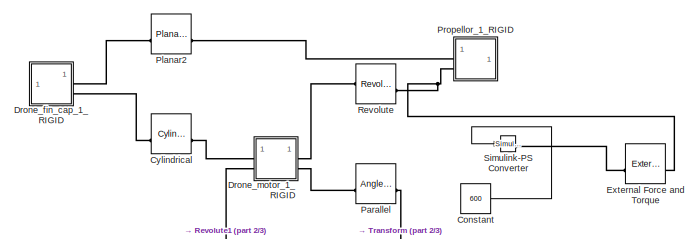
[diagram: root canvas - part 1/3, top center region]
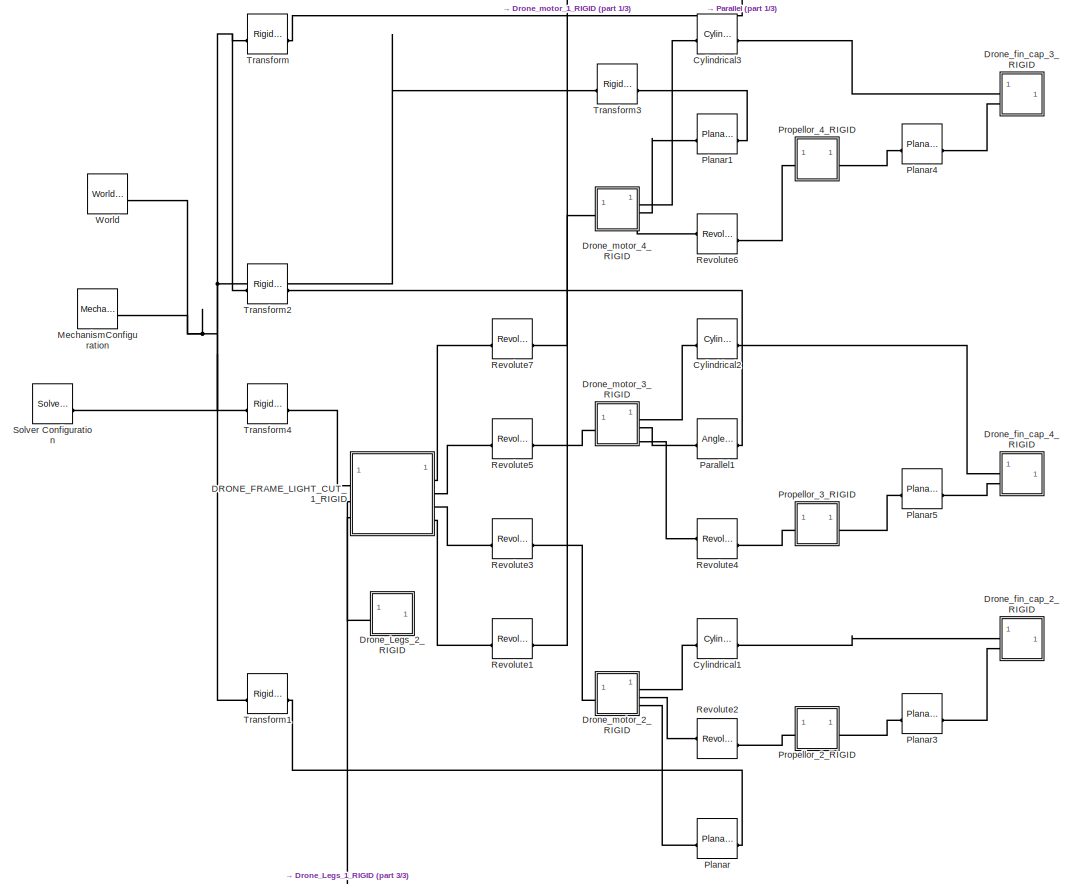
[diagram: root canvas - part 2/3, full width, middle band]
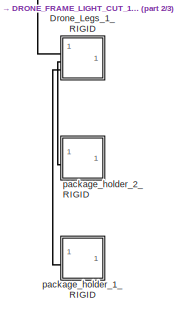
[diagram: root canvas - part 3/3, bottom center region]
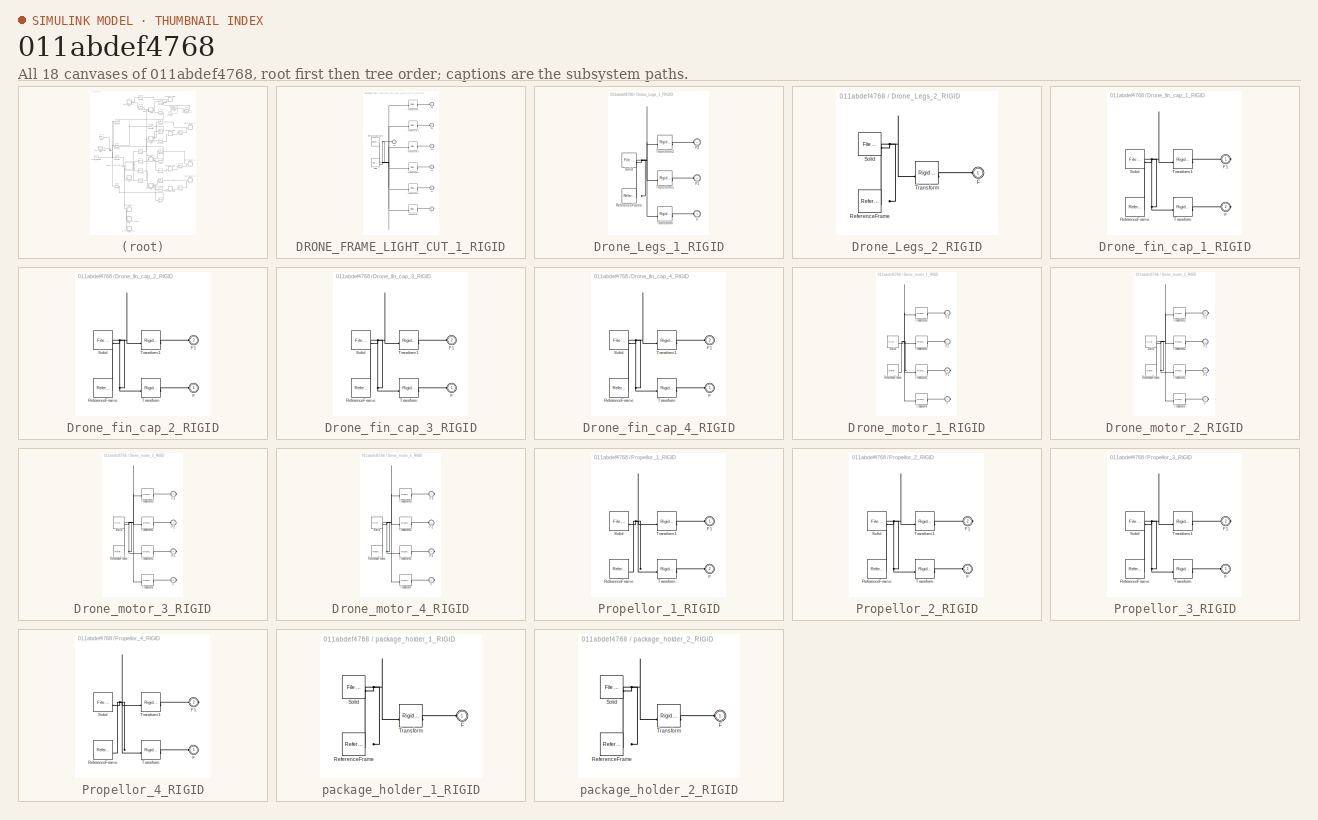
[diagram: thumbnail index - all 18 canvases of the model, root first then tree order]
MODEL slx_011abdef4768
KIND model
CONFIG AbsTol = auto
CONFIG EnableMultiTasking = off
CONFIG FixedStep = auto
CONFIG MaxStep = auto
CONFIG MinStep = auto
CONFIG RelTol = 1e-3
CONFIG SampleTimeConstraint = Unconstrained
CONFIG SolverName = VariableStepAuto
CONFIG StartTime = 0.0
CONFIG StopTime = 10.0
WORKSPACE source: external: MATLAB File  (data not in archive)
BLOCK [Constant] Constant
  Value = 600
BLOCK [Reference] Cylindrical  REF=sm_lib/Joints/Cylindrical
Joint
  SourceBlock = sm_lib/Joints/Cylindrical\nJoint
  SourceType = Cylindrical\nJoint
BLOCK [Reference] Cylindrical1  REF=sm_lib/Joints/Cylindrical
Joint
  SourceBlock = sm_lib/Joints/Cylindrical\nJoint
  SourceType = Cylindrical\nJoint
BLOCK [Reference] Cylindrical2  REF=sm_lib/Joints/Cylindrical
Joint
  SourceBlock = sm_lib/Joints/Cylindrical\nJoint
  SourceType = Cylindrical\nJoint
BLOCK [Reference] Cylindrical3  REF=sm_lib/Joints/Cylindrical
Joint
  SourceBlock = sm_lib/Joints/Cylindrical\nJoint
  SourceType = Cylindrical\nJoint
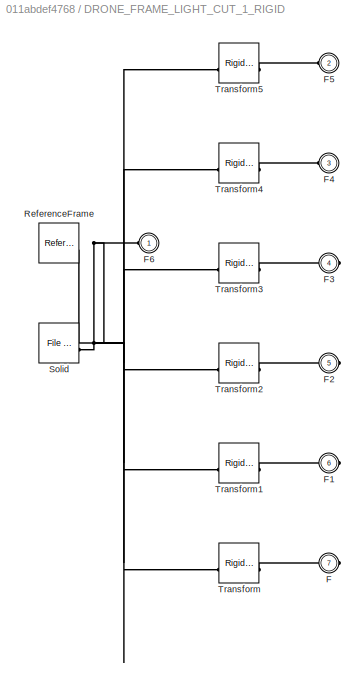
BLOCK [SubSystem] DRONE_FRAME_LIGHT_CUT_1_RIGID
BLOCK [PMIOPort] DRONE_FRAME_LIGHT_CUT_1_RIGID/F
  Port = 7
  Side = Right
BLOCK [PMIOPort] DRONE_FRAME_LIGHT_CUT_1_RIGID/F1
  Port = 6
  Side = Right
BLOCK [PMIOPort] DRONE_FRAME_LIGHT_CUT_1_RIGID/F2
  Port = 5
  Side = Right
BLOCK [PMIOPort] DRONE_FRAME_LIGHT_CUT_1_RIGID/F3
  Port = 4
  Side = Right
BLOCK [PMIOPort] DRONE_FRAME_LIGHT_CUT_1_RIGID/F4
  Port = 3
  Side = Left
BLOCK [PMIOPort] DRONE_FRAME_LIGHT_CUT_1_RIGID/F5
  Port = 2
  Side = Left
BLOCK [PMIOPort] DRONE_FRAME_LIGHT_CUT_1_RIGID/F6
  Side = Left
BLOCK [Reference] DRONE_FRAME_LIGHT_CUT_1_RIGID/ReferenceFrame  REF=sm_lib/Frames and
Transforms/Reference
Frame
  SourceBlock = sm_lib/Frames and\nTransforms/Reference\nFrame
  SourceType = Reference\nFrame
BLOCK [Reference] DRONE_FRAME_LIGHT_CUT_1_RIGID/Solid  REF=sm_lib/Body Elements/File Solid
  SourceBlock = sm_lib/Body Elements/File Solid
  SourceType = File Solid
BLOCK [Reference] DRONE_FRAME_LIGHT_CUT_1_RIGID/Transform  REF=sm_lib/Frames and
Transforms/Rigid
Transform
  SourceBlock = sm_lib/Frames and\nTransforms/Rigid\nTransform
  SourceType = Rigid\nTransform
BLOCK [Reference] DRONE_FRAME_LIGHT_CUT_1_RIGID/Transform1  REF=sm_lib/Frames and
Transforms/Rigid
Transform
  SourceBlock = sm_lib/Frames and\nTransforms/Rigid\nTransform
  SourceType = Rigid\nTransform
BLOCK [Reference] DRONE_FRAME_LIGHT_CUT_1_RIGID/Transform2  REF=sm_lib/Frames and
Transforms/Rigid
Transform
  SourceBlock = sm_lib/Frames and\nTransforms/Rigid\nTransform
  SourceType = Rigid\nTransform
BLOCK [Reference] DRONE_FRAME_LIGHT_CUT_1_RIGID/Transform3  REF=sm_lib/Frames and
Transforms/Rigid
Transform
  SourceBlock = sm_lib/Frames and\nTransforms/Rigid\nTransform
  SourceType = Rigid\nTransform
BLOCK [Reference] DRONE_FRAME_LIGHT_CUT_1_RIGID/Transform4  REF=sm_lib/Frames and
Transforms/Rigid
Transform
  SourceBlock = sm_lib/Frames and\nTransforms/Rigid\nTransform
  SourceType = Rigid\nTransform
BLOCK [Reference] DRONE_FRAME_LIGHT_CUT_1_RIGID/Transform5  REF=sm_lib/Frames and
Transforms/Rigid
Transform
  SourceBlock = sm_lib/Frames and\nTransforms/Rigid\nTransform
  SourceType = Rigid\nTransform
BLOCK [SubSystem] Drone_Legs_1_RIGID
BLOCK [PMIOPort] Drone_Legs_1_RIGID/F
  Port = 3
  Side = Left
BLOCK [PMIOPort] Drone_Legs_1_RIGID/F1
  Port = 2
  Side = Left
BLOCK [PMIOPort] Drone_Legs_1_RIGID/F2
  Side = Left
BLOCK [Reference] Drone_Legs_1_RIGID/ReferenceFrame  REF=sm_lib/Frames and
Transforms/Reference
Frame
  SourceBlock = sm_lib/Frames and\nTransforms/Reference\nFrame
  SourceType = Reference\nFrame
BLOCK [Reference] Drone_Legs_1_RIGID/Solid  REF=sm_lib/Body Elements/File Solid
  SourceBlock = sm_lib/Body Elements/File Solid
  SourceType = File Solid
BLOCK [Reference] Drone_Legs_1_RIGID/Transform  REF=sm_lib/Frames and
Transforms/Rigid
Transform
  SourceBlock = sm_lib/Frames and\nTransforms/Rigid\nTransform
  SourceType = Rigid\nTransform
BLOCK [Reference] Drone_Legs_1_RIGID/Transform1  REF=sm_lib/Frames and
Transforms/Rigid
Transform
  SourceBlock = sm_lib/Frames and\nTransforms/Rigid\nTransform
  SourceType = Rigid\nTransform
BLOCK [Reference] Drone_Legs_1_RIGID/Transform2  REF=sm_lib/Frames and
Transforms/Rigid
Transform
  SourceBlock = sm_lib/Frames and\nTransforms/Rigid\nTransform
  SourceType = Rigid\nTransform
BLOCK [SubSystem] Drone_Legs_2_RIGID
BLOCK [PMIOPort] Drone_Legs_2_RIGID/F
  Side = Left
BLOCK [Reference] Drone_Legs_2_RIGID/ReferenceFrame  REF=sm_lib/Frames and
Transforms/Reference
Frame
  SourceBlock = sm_lib/Frames and\nTransforms/Reference\nFrame
  SourceType = Reference\nFrame
BLOCK [Reference] Drone_Legs_2_RIGID/Solid  REF=sm_lib/Body Elements/File Solid
  SourceBlock = sm_lib/Body Elements/File Solid
  SourceType = File Solid
BLOCK [Reference] Drone_Legs_2_RIGID/Transform  REF=sm_lib/Frames and
Transforms/Rigid
Transform
  SourceBlock = sm_lib/Frames and\nTransforms/Rigid\nTransform
  SourceType = Rigid\nTransform
BLOCK [SubSystem] Drone_fin_cap_1_RIGID
BLOCK [PMIOPort] Drone_fin_cap_1_RIGID/F
  Port = 2
  Side = Right
BLOCK [PMIOPort] Drone_fin_cap_1_RIGID/F1
  Side = Right
BLOCK [Reference] Drone_fin_cap_1_RIGID/ReferenceFrame  REF=sm_lib/Frames and
Transforms/Reference
Frame
  SourceBlock = sm_lib/Frames and\nTransforms/Reference\nFrame
  SourceType = Reference\nFrame
BLOCK [Reference] Drone_fin_cap_1_RIGID/Solid  REF=sm_lib/Body Elements/File Solid
  SourceBlock = sm_lib/Body Elements/File Solid
  SourceType = File Solid
BLOCK [Reference] Drone_fin_cap_1_RIGID/Transform  REF=sm_lib/Frames and
Transforms/Rigid
Transform
  SourceBlock = sm_lib/Frames and\nTransforms/Rigid\nTransform
  SourceType = Rigid\nTransform
BLOCK [Reference] Drone_fin_cap_1_RIGID/Transform1  REF=sm_lib/Frames and
Transforms/Rigid
Transform
  SourceBlock = sm_lib/Frames and\nTransforms/Rigid\nTransform
  SourceType = Rigid\nTransform
BLOCK [SubSystem] Drone_fin_cap_2_RIGID
BLOCK [PMIOPort] Drone_fin_cap_2_RIGID/F
  Side = Left
BLOCK [PMIOPort] Drone_fin_cap_2_RIGID/F1
  Port = 2
  Side = Left
BLOCK [Reference] Drone_fin_cap_2_RIGID/ReferenceFrame  REF=sm_lib/Frames and
Transforms/Reference
Frame
  SourceBlock = sm_lib/Frames and\nTransforms/Reference\nFrame
  SourceType = Reference\nFrame
BLOCK [Reference] Drone_fin_cap_2_RIGID/Solid  REF=sm_lib/Body Elements/File Solid
  SourceBlock = sm_lib/Body Elements/File Solid
  SourceType = File Solid
BLOCK [Reference] Drone_fin_cap_2_RIGID/Transform  REF=sm_lib/Frames and
Transforms/Rigid
Transform
  SourceBlock = sm_lib/Frames and\nTransforms/Rigid\nTransform
  SourceType = Rigid\nTransform
BLOCK [Reference] Drone_fin_cap_2_RIGID/Transform1  REF=sm_lib/Frames and
Transforms/Rigid
Transform
  SourceBlock = sm_lib/Frames and\nTransforms/Rigid\nTransform
  SourceType = Rigid\nTransform
BLOCK [SubSystem] Drone_fin_cap_3_RIGID
BLOCK [PMIOPort] Drone_fin_cap_3_RIGID/F
  Side = Left
BLOCK [PMIOPort] Drone_fin_cap_3_RIGID/F1
  Port = 2
  Side = Left
BLOCK [Reference] Drone_fin_cap_3_RIGID/ReferenceFrame  REF=sm_lib/Frames and
Transforms/Reference
Frame
  SourceBlock = sm_lib/Frames and\nTransforms/Reference\nFrame
  SourceType = Reference\nFrame
BLOCK [Reference] Drone_fin_cap_3_RIGID/Solid  REF=sm_lib/Body Elements/File Solid
  SourceBlock = sm_lib/Body Elements/File Solid
  SourceType = File Solid
BLOCK [Reference] Drone_fin_cap_3_RIGID/Transform  REF=sm_lib/Frames and
Transforms/Rigid
Transform
  SourceBlock = sm_lib/Frames and\nTransforms/Rigid\nTransform
  SourceType = Rigid\nTransform
BLOCK [Reference] Drone_fin_cap_3_RIGID/Transform1  REF=sm_lib/Frames and
Transforms/Rigid
Transform
  SourceBlock = sm_lib/Frames and\nTransforms/Rigid\nTransform
  SourceType = Rigid\nTransform
BLOCK [SubSystem] Drone_fin_cap_4_RIGID
BLOCK [PMIOPort] Drone_fin_cap_4_RIGID/F
  Side = Left
BLOCK [PMIOPort] Drone_fin_cap_4_RIGID/F1
  Port = 2
  Side = Left
BLOCK [Reference] Drone_fin_cap_4_RIGID/ReferenceFrame  REF=sm_lib/Frames and
Transforms/Reference
Frame
  SourceBlock = sm_lib/Frames and\nTransforms/Reference\nFrame
  SourceType = Reference\nFrame
BLOCK [Reference] Drone_fin_cap_4_RIGID/Solid  REF=sm_lib/Body Elements/File Solid
  SourceBlock = sm_lib/Body Elements/File Solid
  SourceType = File Solid
BLOCK [Reference] Drone_fin_cap_4_RIGID/Transform  REF=sm_lib/Frames and
Transforms/Rigid
Transform
  SourceBlock = sm_lib/Frames and\nTransforms/Rigid\nTransform
  SourceType = Rigid\nTransform
BLOCK [Reference] Drone_fin_cap_4_RIGID/Transform1  REF=sm_lib/Frames and
Transforms/Rigid
Transform
  SourceBlock = sm_lib/Frames and\nTransforms/Rigid\nTransform
  SourceType = Rigid\nTransform
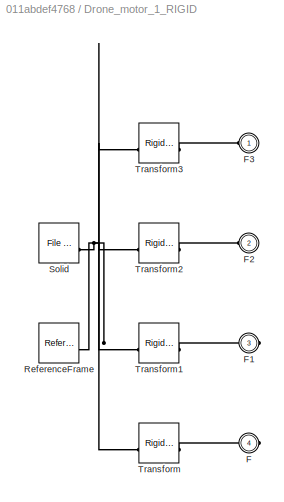
BLOCK [SubSystem] Drone_motor_1_RIGID
BLOCK [PMIOPort] Drone_motor_1_RIGID/F
  Port = 4
  Side = Right
BLOCK [PMIOPort] Drone_motor_1_RIGID/F1
  Port = 3
  Side = Right
BLOCK [PMIOPort] Drone_motor_1_RIGID/F2
  Port = 2
  Side = Left
BLOCK [PMIOPort] Drone_motor_1_RIGID/F3
  Side = Left
BLOCK [Reference] Drone_motor_1_RIGID/ReferenceFrame  REF=sm_lib/Frames and
Transforms/Reference
Frame
  SourceBlock = sm_lib/Frames and\nTransforms/Reference\nFrame
  SourceType = Reference\nFrame
BLOCK [Reference] Drone_motor_1_RIGID/Solid  REF=sm_lib/Body Elements/File Solid
  SourceBlock = sm_lib/Body Elements/File Solid
  SourceType = File Solid
BLOCK [Reference] Drone_motor_1_RIGID/Transform  REF=sm_lib/Frames and
Transforms/Rigid
Transform
  SourceBlock = sm_lib/Frames and\nTransforms/Rigid\nTransform
  SourceType = Rigid\nTransform
BLOCK [Reference] Drone_motor_1_RIGID/Transform1  REF=sm_lib/Frames and
Transforms/Rigid
Transform
  SourceBlock = sm_lib/Frames and\nTransforms/Rigid\nTransform
  SourceType = Rigid\nTransform
BLOCK [Reference] Drone_motor_1_RIGID/Transform2  REF=sm_lib/Frames and
Transforms/Rigid
Transform
  SourceBlock = sm_lib/Frames and\nTransforms/Rigid\nTransform
  SourceType = Rigid\nTransform
BLOCK [Reference] Drone_motor_1_RIGID/Transform3  REF=sm_lib/Frames and
Transforms/Rigid
Transform
  SourceBlock = sm_lib/Frames and\nTransforms/Rigid\nTransform
  SourceType = Rigid\nTransform
BLOCK [SubSystem] Drone_motor_2_RIGID
BLOCK [PMIOPort] Drone_motor_2_RIGID/F
  Port = 4
  Side = Right
BLOCK [PMIOPort] Drone_motor_2_RIGID/F1
  Port = 3
  Side = Right
BLOCK [PMIOPort] Drone_motor_2_RIGID/F2
  Side = Left
BLOCK [PMIOPort] Drone_motor_2_RIGID/F3
  Port = 2
  Side = Right
BLOCK [Reference] Drone_motor_2_RIGID/ReferenceFrame  REF=sm_lib/Frames and
Transforms/Reference
Frame
  SourceBlock = sm_lib/Frames and\nTransforms/Reference\nFrame
  SourceType = Reference\nFrame
BLOCK [Reference] Drone_motor_2_RIGID/Solid  REF=sm_lib/Body Elements/File Solid
  SourceBlock = sm_lib/Body Elements/File Solid
  SourceType = File Solid
BLOCK [Reference] Drone_motor_2_RIGID/Transform  REF=sm_lib/Frames and
Transforms/Rigid
Transform
  SourceBlock = sm_lib/Frames and\nTransforms/Rigid\nTransform
  SourceType = Rigid\nTransform
BLOCK [Reference] Drone_motor_2_RIGID/Transform1  REF=sm_lib/Frames and
Transforms/Rigid
Transform
  SourceBlock = sm_lib/Frames and\nTransforms/Rigid\nTransform
  SourceType = Rigid\nTransform
BLOCK [Reference] Drone_motor_2_RIGID/Transform2  REF=sm_lib/Frames and
Transforms/Rigid
Transform
  SourceBlock = sm_lib/Frames and\nTransforms/Rigid\nTransform
  SourceType = Rigid\nTransform
BLOCK [Reference] Drone_motor_2_RIGID/Transform3  REF=sm_lib/Frames and
Transforms/Rigid
Transform
  SourceBlock = sm_lib/Frames and\nTransforms/Rigid\nTransform
  SourceType = Rigid\nTransform
BLOCK [SubSystem] Drone_motor_3_RIGID
BLOCK [PMIOPort] Drone_motor_3_RIGID/F
  Port = 3
  Side = Right
BLOCK [PMIOPort] Drone_motor_3_RIGID/F1
  Port = 4
  Side = Right
BLOCK [PMIOPort] Drone_motor_3_RIGID/F2
  Side = Left
BLOCK [PMIOPort] Drone_motor_3_RIGID/F3
  Port = 2
  Side = Right
BLOCK [Reference] Drone_motor_3_RIGID/ReferenceFrame  REF=sm_lib/Frames and
Transforms/Reference
Frame
  SourceBlock = sm_lib/Frames and\nTransforms/Reference\nFrame
  SourceType = Reference\nFrame
BLOCK [Reference] Drone_motor_3_RIGID/Solid  REF=sm_lib/Body Elements/File Solid
  SourceBlock = sm_lib/Body Elements/File Solid
  SourceType = File Solid
BLOCK [Reference] Drone_motor_3_RIGID/Transform  REF=sm_lib/Frames and
Transforms/Rigid
Transform
  SourceBlock = sm_lib/Frames and\nTransforms/Rigid\nTransform
  SourceType = Rigid\nTransform
BLOCK [Reference] Drone_motor_3_RIGID/Transform1  REF=sm_lib/Frames and
Transforms/Rigid
Transform
  SourceBlock = sm_lib/Frames and\nTransforms/Rigid\nTransform
  SourceType = Rigid\nTransform
BLOCK [Reference] Drone_motor_3_RIGID/Transform2  REF=sm_lib/Frames and
Transforms/Rigid
Transform
  SourceBlock = sm_lib/Frames and\nTransforms/Rigid\nTransform
  SourceType = Rigid\nTransform
BLOCK [Reference] Drone_motor_3_RIGID/Transform3  REF=sm_lib/Frames and
Transforms/Rigid
Transform
  SourceBlock = sm_lib/Frames and\nTransforms/Rigid\nTransform
  SourceType = Rigid\nTransform
BLOCK [SubSystem] Drone_motor_4_RIGID
BLOCK [PMIOPort] Drone_motor_4_RIGID/F
  Port = 3
  Side = Right
BLOCK [PMIOPort] Drone_motor_4_RIGID/F1
  Port = 4
  Side = Right
BLOCK [PMIOPort] Drone_motor_4_RIGID/F2
  Side = Left
BLOCK [PMIOPort] Drone_motor_4_RIGID/F3
  Port = 2
  Side = Right
BLOCK [Reference] Drone_motor_4_RIGID/ReferenceFrame  REF=sm_lib/Frames and
Transforms/Reference
Frame
  SourceBlock = sm_lib/Frames and\nTransforms/Reference\nFrame
  SourceType = Reference\nFrame
BLOCK [Reference] Drone_motor_4_RIGID/Solid  REF=sm_lib/Body Elements/File Solid
  SourceBlock = sm_lib/Body Elements/File Solid
  SourceType = File Solid
BLOCK [Reference] Drone_motor_4_RIGID/Transform  REF=sm_lib/Frames and
Transforms/Rigid
Transform
  SourceBlock = sm_lib/Frames and\nTransforms/Rigid\nTransform
  SourceType = Rigid\nTransform
BLOCK [Reference] Drone_motor_4_RIGID/Transform1  REF=sm_lib/Frames and
Transforms/Rigid
Transform
  SourceBlock = sm_lib/Frames and\nTransforms/Rigid\nTransform
  SourceType = Rigid\nTransform
BLOCK [Reference] Drone_motor_4_RIGID/Transform2  REF=sm_lib/Frames and
Transforms/Rigid
Transform
  SourceBlock = sm_lib/Frames and\nTransforms/Rigid\nTransform
  SourceType = Rigid\nTransform
BLOCK [Reference] Drone_motor_4_RIGID/Transform3  REF=sm_lib/Frames and
Transforms/Rigid
Transform
  SourceBlock = sm_lib/Frames and\nTransforms/Rigid\nTransform
  SourceType = Rigid\nTransform
BLOCK [Reference] External Force and Torque  REF=sm_lib/Forces and
Torques/External Force
and Torque
  SourceBlock = sm_lib/Forces and\nTorques/External Force\nand Torque
  SourceType = External Force\nand Torque
BLOCK [Reference] MechanismConfiguration  REF=sm_lib/Utilities/Mechanism
Configuration
  SourceBlock = sm_lib/Utilities/Mechanism\nConfiguration
  SourceType = Mechanism\nConfiguration
BLOCK [Reference] Parallel  REF=sm_lib/Constraints/Angle
Constraint
  SourceBlock = sm_lib/Constraints/Angle\nConstraint
  SourceType = Angle\nConstraint
BLOCK [Reference] Parallel1  REF=sm_lib/Constraints/Angle
Constraint
  SourceBlock = sm_lib/Constraints/Angle\nConstraint
  SourceType = Angle\nConstraint
BLOCK [Reference] Planar  REF=sm_lib/Joints/Planar Joint
  SourceBlock = sm_lib/Joints/Planar Joint
  SourceType = Planar Joint
BLOCK [Reference] Planar1  REF=sm_lib/Joints/Planar Joint
  SourceBlock = sm_lib/Joints/Planar Joint
  SourceType = Planar Joint
BLOCK [Reference] Planar2  REF=sm_lib/Joints/Planar Joint
  SourceBlock = sm_lib/Joints/Planar Joint
  SourceType = Planar Joint
BLOCK [Reference] Planar3  REF=sm_lib/Joints/Planar Joint
  SourceBlock = sm_lib/Joints/Planar Joint
  SourceType = Planar Joint
BLOCK [Reference] Planar4  REF=sm_lib/Joints/Planar Joint
  SourceBlock = sm_lib/Joints/Planar Joint
  SourceType = Planar Joint
BLOCK [Reference] Planar5  REF=sm_lib/Joints/Planar Joint
  SourceBlock = sm_lib/Joints/Planar Joint
  SourceType = Planar Joint
BLOCK [SubSystem] Propellor_1_RIGID
BLOCK [PMIOPort] Propellor_1_RIGID/F
  Port = 2
  Side = Left
BLOCK [PMIOPort] Propellor_1_RIGID/F1
  Side = Left
BLOCK [Reference] Propellor_1_RIGID/ReferenceFrame  REF=sm_lib/Frames and
Transforms/Reference
Frame
  SourceBlock = sm_lib/Frames and\nTransforms/Reference\nFrame
  SourceType = Reference\nFrame
BLOCK [Reference] Propellor_1_RIGID/Solid  REF=sm_lib/Body Elements/File Solid
  SourceBlock = sm_lib/Body Elements/File Solid
  SourceType = File Solid
BLOCK [Reference] Propellor_1_RIGID/Transform  REF=sm_lib/Frames and
Transforms/Rigid
Transform
  SourceBlock = sm_lib/Frames and\nTransforms/Rigid\nTransform
  SourceType = Rigid\nTransform
BLOCK [Reference] Propellor_1_RIGID/Transform1  REF=sm_lib/Frames and
Transforms/Rigid
Transform
  SourceBlock = sm_lib/Frames and\nTransforms/Rigid\nTransform
  SourceType = Rigid\nTransform
BLOCK [SubSystem] Propellor_2_RIGID
BLOCK [PMIOPort] Propellor_2_RIGID/F
  Side = Left
BLOCK [PMIOPort] Propellor_2_RIGID/F1
  Port = 2
  Side = Right
BLOCK [Reference] Propellor_2_RIGID/ReferenceFrame  REF=sm_lib/Frames and
Transforms/Reference
Frame
  SourceBlock = sm_lib/Frames and\nTransforms/Reference\nFrame
  SourceType = Reference\nFrame
BLOCK [Reference] Propellor_2_RIGID/Solid  REF=sm_lib/Body Elements/File Solid
  SourceBlock = sm_lib/Body Elements/File Solid
  SourceType = File Solid
BLOCK [Reference] Propellor_2_RIGID/Transform  REF=sm_lib/Frames and
Transforms/Rigid
Transform
  SourceBlock = sm_lib/Frames and\nTransforms/Rigid\nTransform
  SourceType = Rigid\nTransform
BLOCK [Reference] Propellor_2_RIGID/Transform1  REF=sm_lib/Frames and
Transforms/Rigid
Transform
  SourceBlock = sm_lib/Frames and\nTransforms/Rigid\nTransform
  SourceType = Rigid\nTransform
BLOCK [SubSystem] Propellor_3_RIGID
BLOCK [PMIOPort] Propellor_3_RIGID/F
  Side = Left
BLOCK [PMIOPort] Propellor_3_RIGID/F1
  Port = 2
  Side = Right
BLOCK [Reference] Propellor_3_RIGID/ReferenceFrame  REF=sm_lib/Frames and
Transforms/Reference
Frame
  SourceBlock = sm_lib/Frames and\nTransforms/Reference\nFrame
  SourceType = Reference\nFrame
BLOCK [Reference] Propellor_3_RIGID/Solid  REF=sm_lib/Body Elements/File Solid
  SourceBlock = sm_lib/Body Elements/File Solid
  SourceType = File Solid
BLOCK [Reference] Propellor_3_RIGID/Transform  REF=sm_lib/Frames and
Transforms/Rigid
Transform
  SourceBlock = sm_lib/Frames and\nTransforms/Rigid\nTransform
  SourceType = Rigid\nTransform
BLOCK [Reference] Propellor_3_RIGID/Transform1  REF=sm_lib/Frames and
Transforms/Rigid
Transform
  SourceBlock = sm_lib/Frames and\nTransforms/Rigid\nTransform
  SourceType = Rigid\nTransform
BLOCK [SubSystem] Propellor_4_RIGID
BLOCK [PMIOPort] Propellor_4_RIGID/F
  Side = Left
BLOCK [PMIOPort] Propellor_4_RIGID/F1
  Port = 2
  Side = Right
BLOCK [Reference] Propellor_4_RIGID/ReferenceFrame  REF=sm_lib/Frames and
Transforms/Reference
Frame
  SourceBlock = sm_lib/Frames and\nTransforms/Reference\nFrame
  SourceType = Reference\nFrame
BLOCK [Reference] Propellor_4_RIGID/Solid  REF=sm_lib/Body Elements/File Solid
  SourceBlock = sm_lib/Body Elements/File Solid
  SourceType = File Solid
BLOCK [Reference] Propellor_4_RIGID/Transform  REF=sm_lib/Frames and
Transforms/Rigid
Transform
  SourceBlock = sm_lib/Frames and\nTransforms/Rigid\nTransform
  SourceType = Rigid\nTransform
BLOCK [Reference] Propellor_4_RIGID/Transform1  REF=sm_lib/Frames and
Transforms/Rigid
Transform
  SourceBlock = sm_lib/Frames and\nTransforms/Rigid\nTransform
  SourceType = Rigid\nTransform
BLOCK [Reference] Revolute  REF=sm_lib/Joints/Revolute Joint
  SourceBlock = sm_lib/Joints/Revolute Joint
  SourceType = Revolute Joint
BLOCK [Reference] Revolute1  REF=sm_lib/Joints/Revolute Joint
  SourceBlock = sm_lib/Joints/Revolute Joint
  SourceType = Revolute Joint
BLOCK [Reference] Revolute2  REF=sm_lib/Joints/Revolute Joint
  SourceBlock = sm_lib/Joints/Revolute Joint
  SourceType = Revolute Joint
BLOCK [Reference] Revolute3  REF=sm_lib/Joints/Revolute Joint
  SourceBlock = sm_lib/Joints/Revolute Joint
  SourceType = Revolute Joint
BLOCK [Reference] Revolute4  REF=sm_lib/Joints/Revolute Joint
  SourceBlock = sm_lib/Joints/Revolute Joint
  SourceType = Revolute Joint
BLOCK [Reference] Revolute5  REF=sm_lib/Joints/Revolute Joint
  SourceBlock = sm_lib/Joints/Revolute Joint
  SourceType = Revolute Joint
BLOCK [Reference] Revolute6  REF=sm_lib/Joints/Revolute Joint
  SourceBlock = sm_lib/Joints/Revolute Joint
  SourceType = Revolute Joint
BLOCK [Reference] Revolute7  REF=sm_lib/Joints/Revolute Joint
  SourceBlock = sm_lib/Joints/Revolute Joint
  SourceType = Revolute Joint
BLOCK [Reference] Simulink-PS Converter  REF=nesl_utility/Simulink-PS
Converter
  SourceBlock = nesl_utility/Simulink-PS\nConverter
  SourceType = Simulink-PS\nConverter
BLOCK [Reference] Solver Configuration  REF=nesl_utility/Solver
Configuration
  SourceBlock = nesl_utility/Solver\nConfiguration
  SourceType = Solver\nConfiguration
BLOCK [Reference] Transform  REF=sm_lib/Frames and
Transforms/Rigid
Transform
  SourceBlock = sm_lib/Frames and\nTransforms/Rigid\nTransform
  SourceType = Rigid\nTransform
BLOCK [Reference] Transform1  REF=sm_lib/Frames and
Transforms/Rigid
Transform
  SourceBlock = sm_lib/Frames and\nTransforms/Rigid\nTransform
  SourceType = Rigid\nTransform
BLOCK [Reference] Transform2  REF=sm_lib/Frames and
Transforms/Rigid
Transform
  SourceBlock = sm_lib/Frames and\nTransforms/Rigid\nTransform
  SourceType = Rigid\nTransform
BLOCK [Reference] Transform3  REF=sm_lib/Frames and
Transforms/Rigid
Transform
  SourceBlock = sm_lib/Frames and\nTransforms/Rigid\nTransform
  SourceType = Rigid\nTransform
BLOCK [Reference] Transform4  REF=sm_lib/Frames and
Transforms/Rigid
Transform
  SourceBlock = sm_lib/Frames and\nTransforms/Rigid\nTransform
  SourceType = Rigid\nTransform
BLOCK [Reference] World  REF=sm_lib/Frames and
Transforms/World Frame
  SourceBlock = sm_lib/Frames and\nTransforms/World Frame
  SourceType = World Frame
BLOCK [SubSystem] package_holder_1_RIGID
BLOCK [PMIOPort] package_holder_1_RIGID/F
  Side = Left
BLOCK [Reference] package_holder_1_RIGID/ReferenceFrame  REF=sm_lib/Frames and
Transforms/Reference
Frame
  SourceBlock = sm_lib/Frames and\nTransforms/Reference\nFrame
  SourceType = Reference\nFrame
BLOCK [Reference] package_holder_1_RIGID/Solid  REF=sm_lib/Body Elements/File Solid
  SourceBlock = sm_lib/Body Elements/File Solid
  SourceType = File Solid
BLOCK [Reference] package_holder_1_RIGID/Transform  REF=sm_lib/Frames and
Transforms/Rigid
Transform
  SourceBlock = sm_lib/Frames and\nTransforms/Rigid\nTransform
  SourceType = Rigid\nTransform
BLOCK [SubSystem] package_holder_2_RIGID
BLOCK [PMIOPort] package_holder_2_RIGID/F
  Side = Left
BLOCK [Reference] package_holder_2_RIGID/ReferenceFrame  REF=sm_lib/Frames and
Transforms/Reference
Frame
  SourceBlock = sm_lib/Frames and\nTransforms/Reference\nFrame
  SourceType = Reference\nFrame
BLOCK [Reference] package_holder_2_RIGID/Solid  REF=sm_lib/Body Elements/File Solid
  SourceBlock = sm_lib/Body Elements/File Solid
  SourceType = File Solid
BLOCK [Reference] package_holder_2_RIGID/Transform  REF=sm_lib/Frames and
Transforms/Rigid
Transform
  SourceBlock = sm_lib/Frames and\nTransforms/Rigid\nTransform
  SourceType = Rigid\nTransform
LINE Constant:1 -> Simulink-PS Converter:1
PLINE Cylindrical1:LConn1 -- Drone_motor_2_RIGID:RConn1
PLINE Cylindrical1:RConn1 -- Drone_fin_cap_2_RIGID:LConn1
PLINE Cylindrical2:LConn1 -- Drone_motor_3_RIGID:RConn1
PLINE Cylindrical2:RConn1 -- Drone_fin_cap_4_RIGID:LConn1
PLINE Cylindrical3:LConn1 -- Drone_motor_4_RIGID:RConn1
PLINE Cylindrical3:RConn1 -- Drone_fin_cap_3_RIGID:LConn1
PLINE Cylindrical:LConn1 -- Drone_fin_cap_1_RIGID:RConn2
PLINE Cylindrical:RConn1 -- Drone_motor_1_RIGID:LConn1
PLINE DRONE_FRAME_LIGHT_CUT_1_RIGID/F1:RConn1 -- DRONE_FRAME_LIGHT_CUT_1_RIGID/Transform1:RConn1
PLINE DRONE_FRAME_LIGHT_CUT_1_RIGID/F2:RConn1 -- DRONE_FRAME_LIGHT_CUT_1_RIGID/Transform2:RConn1
PLINE DRONE_FRAME_LIGHT_CUT_1_RIGID/F3:RConn1 -- DRONE_FRAME_LIGHT_CUT_1_RIGID/Transform3:RConn1
PLINE DRONE_FRAME_LIGHT_CUT_1_RIGID/F4:RConn1 -- DRONE_FRAME_LIGHT_CUT_1_RIGID/Transform4:RConn1
PLINE DRONE_FRAME_LIGHT_CUT_1_RIGID/F5:RConn1 -- DRONE_FRAME_LIGHT_CUT_1_RIGID/Transform5:RConn1
PNET net1: DRONE_FRAME_LIGHT_CUT_1_RIGID/F6:RConn1 -- DRONE_FRAME_LIGHT_CUT_1_RIGID/ReferenceFrame:RConn1 -- DRONE_FRAME_LIGHT_CUT_1_RIGID/Solid:RConn1 -- DRONE_FRAME_LIGHT_CUT_1_RIGID/Transform1:LConn1 -- DRONE_FRAME_LIGHT_CUT_1_RIGID/Transform2:LConn1 -- DRONE_FRAME_LIGHT_CUT_1_RIGID/Transform3:LConn1 -- DRONE_FRAME_LIGHT_CUT_1_RIGID/Transform4:LConn1 -- DRONE_FRAME_LIGHT_CUT_1_RIGID/Transform5:LConn1 -- DRONE_FRAME_LIGHT_CUT_1_RIGID/Transform:LConn1
PLINE DRONE_FRAME_LIGHT_CUT_1_RIGID/F:RConn1 -- DRONE_FRAME_LIGHT_CUT_1_RIGID/Transform:RConn1
PLINE DRONE_FRAME_LIGHT_CUT_1_RIGID:LConn1 -- Transform4:RConn1
PLINE DRONE_FRAME_LIGHT_CUT_1_RIGID:LConn2 -- Drone_Legs_2_RIGID:LConn1
PLINE DRONE_FRAME_LIGHT_CUT_1_RIGID:LConn3 -- Drone_Legs_1_RIGID:LConn1
PLINE DRONE_FRAME_LIGHT_CUT_1_RIGID:RConn1 -- Revolute7:LConn1
PLINE DRONE_FRAME_LIGHT_CUT_1_RIGID:RConn2 -- Revolute5:LConn1
PLINE DRONE_FRAME_LIGHT_CUT_1_RIGID:RConn3 -- Revolute3:LConn1
PLINE DRONE_FRAME_LIGHT_CUT_1_RIGID:RConn4 -- Revolute1:LConn1
PLINE Drone_Legs_1_RIGID/F1:RConn1 -- Drone_Legs_1_RIGID/Transform1:RConn1
PLINE Drone_Legs_1_RIGID/F2:RConn1 -- Drone_Legs_1_RIGID/Transform2:RConn1
PLINE Drone_Legs_1_RIGID/F:RConn1 -- Drone_Legs_1_RIGID/Transform:RConn1
PNET net2: Drone_Legs_1_RIGID/ReferenceFrame:RConn1 -- Drone_Legs_1_RIGID/Solid:RConn1 -- Drone_Legs_1_RIGID/Transform1:LConn1 -- Drone_Legs_1_RIGID/Transform2:LConn1 -- Drone_Legs_1_RIGID/Transform:LConn1
PLINE Drone_Legs_1_RIGID:LConn2 -- package_holder_2_RIGID:LConn1
PLINE Drone_Legs_1_RIGID:LConn3 -- package_holder_1_RIGID:LConn1
PLINE Drone_Legs_2_RIGID/F:RConn1 -- Drone_Legs_2_RIGID/Transform:RConn1
PNET net3: Drone_Legs_2_RIGID/ReferenceFrame:RConn1 -- Drone_Legs_2_RIGID/Solid:RConn1 -- Drone_Legs_2_RIGID/Transform:LConn1
PLINE Drone_fin_cap_1_RIGID/F1:RConn1 -- Drone_fin_cap_1_RIGID/Transform1:RConn1
PLINE Drone_fin_cap_1_RIGID/F:RConn1 -- Drone_fin_cap_1_RIGID/Transform:RConn1
PNET net4: Drone_fin_cap_1_RIGID/ReferenceFrame:RConn1 -- Drone_fin_cap_1_RIGID/Solid:RConn1 -- Drone_fin_cap_1_RIGID/Transform1:LConn1 -- Drone_fin_cap_1_RIGID/Transform:LConn1
PLINE Drone_fin_cap_1_RIGID:RConn1 -- Planar2:LConn1
PLINE Drone_fin_cap_2_RIGID/F1:RConn1 -- Drone_fin_cap_2_RIGID/Transform1:RConn1
PLINE Drone_fin_cap_2_RIGID/F:RConn1 -- Drone_fin_cap_2_RIGID/Transform:RConn1
PNET net5: Drone_fin_cap_2_RIGID/ReferenceFrame:RConn1 -- Drone_fin_cap_2_RIGID/Solid:RConn1 -- Drone_fin_cap_2_RIGID/Transform1:LConn1 -- Drone_fin_cap_2_RIGID/Transform:LConn1
PLINE Drone_fin_cap_2_RIGID:LConn2 -- Planar3:RConn1
PLINE Drone_fin_cap_3_RIGID/F1:RConn1 -- Drone_fin_cap_3_RIGID/Transform1:RConn1
PLINE Drone_fin_cap_3_RIGID/F:RConn1 -- Drone_fin_cap_3_RIGID/Transform:RConn1
PNET net6: Drone_fin_cap_3_RIGID/ReferenceFrame:RConn1 -- Drone_fin_cap_3_RIGID/Solid:RConn1 -- Drone_fin_cap_3_RIGID/Transform1:LConn1 -- Drone_fin_cap_3_RIGID/Transform:LConn1
PLINE Drone_fin_cap_3_RIGID:LConn2 -- Planar4:RConn1
PLINE Drone_fin_cap_4_RIGID/F1:RConn1 -- Drone_fin_cap_4_RIGID/Transform1:RConn1
PLINE Drone_fin_cap_4_RIGID/F:RConn1 -- Drone_fin_cap_4_RIGID/Transform:RConn1
PNET net7: Drone_fin_cap_4_RIGID/ReferenceFrame:RConn1 -- Drone_fin_cap_4_RIGID/Solid:RConn1 -- Drone_fin_cap_4_RIGID/Transform1:LConn1 -- Drone_fin_cap_4_RIGID/Transform:LConn1
PLINE Drone_fin_cap_4_RIGID:LConn2 -- Planar5:RConn1
PLINE Drone_motor_1_RIGID/F1:RConn1 -- Drone_motor_1_RIGID/Transform1:RConn1
PLINE Drone_motor_1_RIGID/F2:RConn1 -- Drone_motor_1_RIGID/Transform2:RConn1
PLINE Drone_motor_1_RIGID/F3:RConn1 -- Drone_motor_1_RIGID/Transform3:RConn1
PLINE Drone_motor_1_RIGID/F:RConn1 -- Drone_motor_1_RIGID/Transform:RConn1
PNET net8: Drone_motor_1_RIGID/ReferenceFrame:RConn1 -- Drone_motor_1_RIGID/Solid:RConn1 -- Drone_motor_1_RIGID/Transform1:LConn1 -- Drone_motor_1_RIGID/Transform2:LConn1 -- Drone_motor_1_RIGID/Transform3:LConn1 -- Drone_motor_1_RIGID/Transform:LConn1
PLINE Drone_motor_1_RIGID:LConn2 -- Revolute1:RConn1
PLINE Drone_motor_1_RIGID:RConn1 -- Revolute:LConn1
PLINE Drone_motor_1_RIGID:RConn2 -- Parallel:LConn1
PLINE Drone_motor_2_RIGID/F1:RConn1 -- Drone_motor_2_RIGID/Transform1:RConn1
PLINE Drone_motor_2_RIGID/F2:RConn1 -- Drone_motor_2_RIGID/Transform2:RConn1
PLINE Drone_motor_2_RIGID/F3:RConn1 -- Drone_motor_2_RIGID/Transform3:RConn1
PLINE Drone_motor_2_RIGID/F:RConn1 -- Drone_motor_2_RIGID/Transform:RConn1
PNET net9: Drone_motor_2_RIGID/ReferenceFrame:RConn1 -- Drone_motor_2_RIGID/Solid:RConn1 -- Drone_motor_2_RIGID/Transform1:LConn1 -- Drone_motor_2_RIGID/Transform2:LConn1 -- Drone_motor_2_RIGID/Transform3:LConn1 -- Drone_motor_2_RIGID/Transform:LConn1
PLINE Drone_motor_2_RIGID:LConn1 -- Revolute3:RConn1
PLINE Drone_motor_2_RIGID:RConn2 -- Revolute2:LConn1
PLINE Drone_motor_2_RIGID:RConn3 -- Planar:LConn1
PLINE Drone_motor_3_RIGID/F1:RConn1 -- Drone_motor_3_RIGID/Transform1:RConn1
PLINE Drone_motor_3_RIGID/F2:RConn1 -- Drone_motor_3_RIGID/Transform2:RConn1
PLINE Drone_motor_3_RIGID/F3:RConn1 -- Drone_motor_3_RIGID/Transform3:RConn1
PLINE Drone_motor_3_RIGID/F:RConn1 -- Drone_motor_3_RIGID/Transform:RConn1
PNET net10: Drone_motor_3_RIGID/ReferenceFrame:RConn1 -- Drone_motor_3_RIGID/Solid:RConn1 -- Drone_motor_3_RIGID/Transform1:LConn1 -- Drone_motor_3_RIGID/Transform2:LConn1 -- Drone_motor_3_RIGID/Transform3:LConn1 -- Drone_motor_3_RIGID/Transform:LConn1
PLINE Drone_motor_3_RIGID:LConn1 -- Revolute5:RConn1
PLINE Drone_motor_3_RIGID:RConn2 -- Parallel1:LConn1
PLINE Drone_motor_3_RIGID:RConn3 -- Revolute4:LConn1
PLINE Drone_motor_4_RIGID/F1:RConn1 -- Drone_motor_4_RIGID/Transform1:RConn1
PLINE Drone_motor_4_RIGID/F2:RConn1 -- Drone_motor_4_RIGID/Transform2:RConn1
PLINE Drone_motor_4_RIGID/F3:RConn1 -- Drone_motor_4_RIGID/Transform3:RConn1
PLINE Drone_motor_4_RIGID/F:RConn1 -- Drone_motor_4_RIGID/Transform:RConn1
PNET net11: Drone_motor_4_RIGID/ReferenceFrame:RConn1 -- Drone_motor_4_RIGID/Solid:RConn1 -- Drone_motor_4_RIGID/Transform1:LConn1 -- Drone_motor_4_RIGID/Transform2:LConn1 -- Drone_motor_4_RIGID/Transform3:LConn1 -- Drone_motor_4_RIGID/Transform:LConn1
PLINE Drone_motor_4_RIGID:LConn1 -- Revolute7:RConn1
PLINE Drone_motor_4_RIGID:RConn2 -- Planar1:LConn1
PLINE Drone_motor_4_RIGID:RConn3 -- Revolute6:LConn1
PLINE External Force and Torque:LConn1 -- Simulink-PS Converter:RConn1
PNET net12: External Force and Torque:RConn1 -- Propellor_1_RIGID:LConn2 -- Revolute:RConn1
PNET net13: MechanismConfiguration:RConn1 -- Solver Configuration:RConn1 -- Transform1:LConn1 -- Transform2:LConn1 -- Transform3:LConn1 -- Transform4:LConn1 -- Transform:LConn1 -- World:RConn1
PLINE Parallel1:RConn1 -- Transform2:RConn1
PLINE Parallel:RConn1 -- Transform:RConn1
PLINE Planar1:RConn1 -- Transform3:RConn1
PLINE Planar2:RConn1 -- Propellor_1_RIGID:LConn1
PLINE Planar3:LConn1 -- Propellor_2_RIGID:RConn1
PLINE Planar4:LConn1 -- Propellor_4_RIGID:RConn1
PLINE Planar5:LConn1 -- Propellor_3_RIGID:RConn1
PLINE Planar:RConn1 -- Transform1:RConn1
PLINE Propellor_1_RIGID/F1:RConn1 -- Propellor_1_RIGID/Transform1:RConn1
PLINE Propellor_1_RIGID/F:RConn1 -- Propellor_1_RIGID/Transform:RConn1
PNET net14: Propellor_1_RIGID/ReferenceFrame:RConn1 -- Propellor_1_RIGID/Solid:RConn1 -- Propellor_1_RIGID/Transform1:LConn1 -- Propellor_1_RIGID/Transform:LConn1
PLINE Propellor_2_RIGID/F1:RConn1 -- Propellor_2_RIGID/Transform1:RConn1
PLINE Propellor_2_RIGID/F:RConn1 -- Propellor_2_RIGID/Transform:RConn1
PNET net15: Propellor_2_RIGID/ReferenceFrame:RConn1 -- Propellor_2_RIGID/Solid:RConn1 -- Propellor_2_RIGID/Transform1:LConn1 -- Propellor_2_RIGID/Transform:LConn1
PLINE Propellor_2_RIGID:LConn1 -- Revolute2:RConn1
PLINE Propellor_3_RIGID/F1:RConn1 -- Propellor_3_RIGID/Transform1:RConn1
PLINE Propellor_3_RIGID/F:RConn1 -- Propellor_3_RIGID/Transform:RConn1
PNET net16: Propellor_3_RIGID/ReferenceFrame:RConn1 -- Propellor_3_RIGID/Solid:RConn1 -- Propellor_3_RIGID/Transform1:LConn1 -- Propellor_3_RIGID/Transform:LConn1
PLINE Propellor_3_RIGID:LConn1 -- Revolute4:RConn1
PLINE Propellor_4_RIGID/F1:RConn1 -- Propellor_4_RIGID/Transform1:RConn1
PLINE Propellor_4_RIGID/F:RConn1 -- Propellor_4_RIGID/Transform:RConn1
PNET net17: Propellor_4_RIGID/ReferenceFrame:RConn1 -- Propellor_4_RIGID/Solid:RConn1 -- Propellor_4_RIGID/Transform1:LConn1 -- Propellor_4_RIGID/Transform:LConn1
PLINE Propellor_4_RIGID:LConn1 -- Revolute6:RConn1
PLINE package_holder_1_RIGID/F:RConn1 -- package_holder_1_RIGID/Transform:RConn1
PNET net18: package_holder_1_RIGID/ReferenceFrame:RConn1 -- package_holder_1_RIGID/Solid:RConn1 -- package_holder_1_RIGID/Transform:LConn1
PLINE package_holder_2_RIGID/F:RConn1 -- package_holder_2_RIGID/Transform:RConn1
PNET net19: package_holder_2_RIGID/ReferenceFrame:RConn1 -- package_holder_2_RIGID/Solid:RConn1 -- package_holder_2_RIGID/Transform:LConn1
note: PNET lines group multi-terminal physical nets as a canonical sorted terminal list (undirected conserving connections); 2-terminal nets keep the pairwise PLINE form
